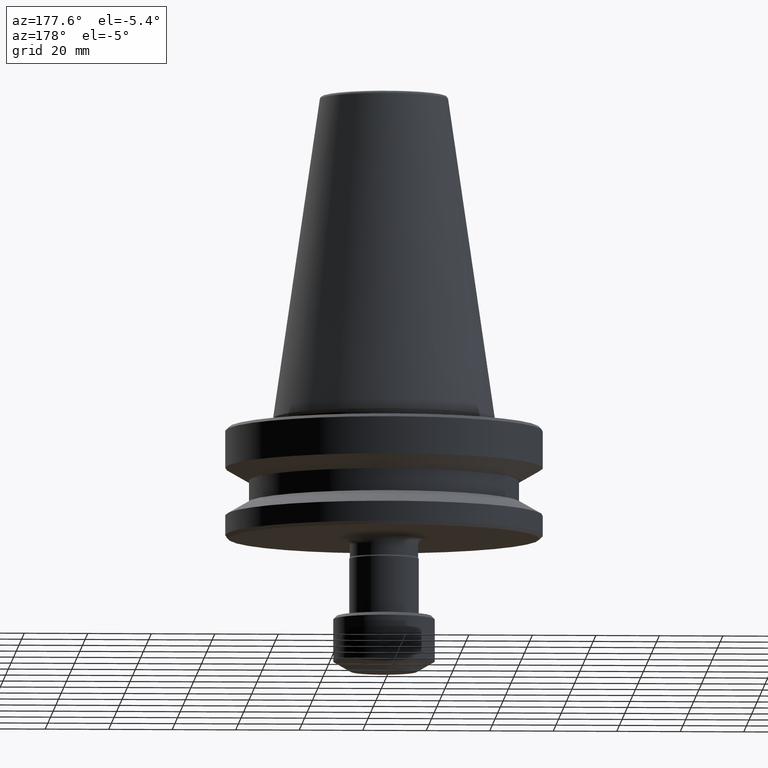
[diagram: clean part render]
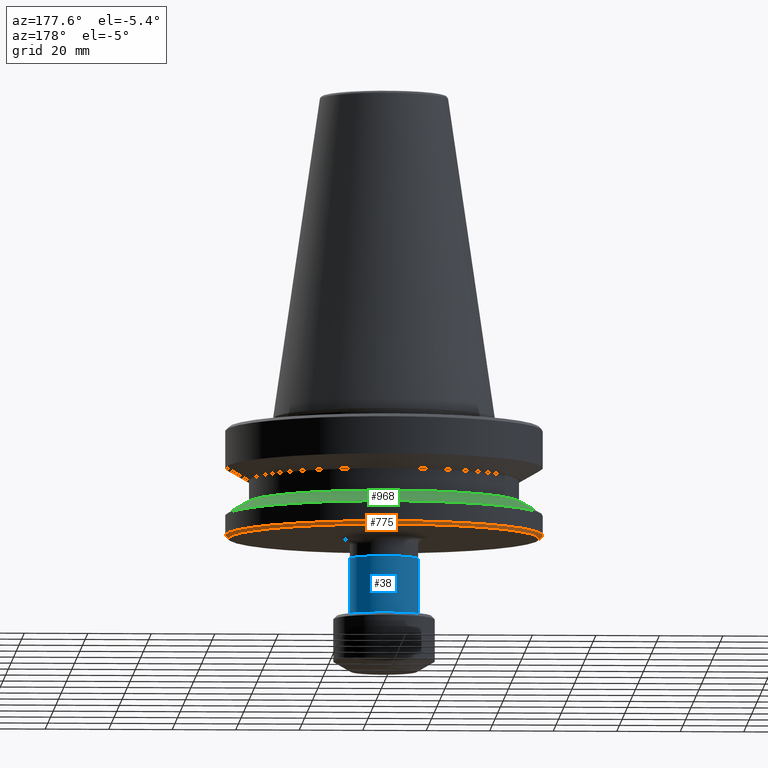
[diagram: same view with three faces highlighted in distinct colors, each labeled with its STEP entity id]
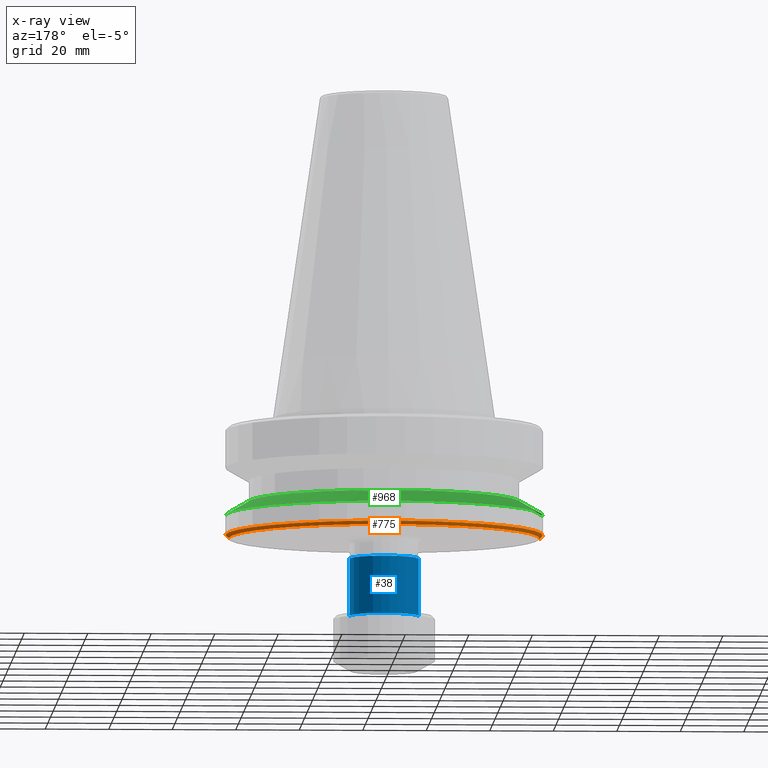
[diagram: x-ray of the same camera — body ghosted, the three highlighted faces saturated]
A machine part, auxiliary view with three faces highlighted in distinct colors.
The next image is the same camera in x-ray (body ghosted, the three faces saturated) — at least one of them is partly hidden behind the body in this view.
Their STEP definitions:

[orange] entity #775 — the highlighted conical surface has half-angle 45 deg.
#14 = LINE ( 'NONE', #77, #1211 ) ;
#77 = CARTESIAN_POINT ( 'NONE',  ( 49.99999999996496300, 0.0000000000000000000, -37.00000000002158600 ) ) ;
#96 = CARTESIAN_POINT ( 'NONE',  ( 0.0000000000000000000, 0.0000000000000000000, -37.00000000002158600 ) ) ;
#100 = VERTEX_POINT ( 'NONE', #232 ) ;
#116 = CIRCLE ( 'NONE', #397, 48.99999999996496300 ) ;
#131 = DIRECTION ( 'NONE',  ( -0.0000000000000000000, -0.0000000000000000000, 1.000000000000000000 ) ) ;
#138 = DIRECTION ( 'NONE',  ( -0.7071067811865474600, 8.659560562354931600E-017, 0.7071067811865475700 ) ) ;
#154 = CARTESIAN_POINT ( 'NONE',  ( -49.99999999996496300, 6.123233995732475500E-015, -37.00000000002158600 ) ) ;
#232 = CARTESIAN_POINT ( 'NONE',  ( -48.99999999996496300, 6.062001655775107900E-015, -38.00000000002158600 ) ) ;
#302 = AXIS2_PLACEMENT_3D ( 'NONE', #96, #131, #651 ) ;
#304 = DIRECTION ( 'NONE',  ( -0.0000000000000000000, -0.0000000000000000000, 1.000000000000000000 ) ) ;
#327 = FACE_OUTER_BOUND ( 'NONE', #384, .T. ) ;
#384 = EDGE_LOOP ( 'NONE', ( #1193, #462, #566, #522 ) ) ;
#397 = AXIS2_PLACEMENT_3D ( 'NONE', #542, #754, #946 ) ;
#413 = CARTESIAN_POINT ( 'NONE',  ( 48.99999999996496300, 0.0000000000000000000, -38.00000000002158600 ) ) ;
#462 = ORIENTED_EDGE ( 'NONE', *, *, #841, .T. ) ;
#491 = CONICAL_SURFACE ( 'NONE', #302, 49.99999999996496300, 0.7853981633974482800 ) ;
#522 = ORIENTED_EDGE ( 'NONE', *, *, #1188, .F. ) ;
#542 = CARTESIAN_POINT ( 'NONE',  ( 0.0000000000000000000, 0.0000000000000000000, -38.00000000002158600 ) ) ;
#554 = VERTEX_POINT ( 'NONE', #413 ) ;
#566 = ORIENTED_EDGE ( 'NONE', *, *, #1210, .F. ) ;
#567 = VERTEX_POINT ( 'NONE', #1100 ) ;
#630 = DIRECTION ( 'NONE',  ( 0.7071067811865474600, 0.0000000000000000000, 0.7071067811865475700 ) ) ;
#651 = DIRECTION ( 'NONE',  ( 1.000000000000000000, 0.0000000000000000000, 0.0000000000000000000 ) ) ;
#684 = VERTEX_POINT ( 'NONE', #1176 ) ;
#744 = DIRECTION ( 'NONE',  ( 1.000000000000000000, 0.0000000000000000000, 0.0000000000000000000 ) ) ;
#754 = DIRECTION ( 'NONE',  ( -0.0000000000000000000, -0.0000000000000000000, 1.000000000000000000 ) ) ;
#775 = ADVANCED_FACE ( 'NONE', ( #327 ), #491, .T. ) ;
#841 = EDGE_CURVE ( 'NONE', #100, #684, #955, .T. ) ;
#917 = EDGE_CURVE ( 'NONE', #554, #100, #116, .T. ) ;
#946 = DIRECTION ( 'NONE',  ( 1.000000000000000000, 0.0000000000000000000, 0.0000000000000000000 ) ) ;
#947 = VECTOR ( 'NONE', #138, 1000.000000000000000 ) ;
#955 = LINE ( 'NONE', #154, #947 ) ;
#1021 = CARTESIAN_POINT ( 'NONE',  ( 0.0000000000000000000, 0.0000000000000000000, -37.00000000002158600 ) ) ;
#1099 = AXIS2_PLACEMENT_3D ( 'NONE', #1021, #304, #744 ) ;
#1100 = CARTESIAN_POINT ( 'NONE',  ( 49.99999999996496300, 0.0000000000000000000, -37.00000000002158600 ) ) ;
#1122 = CIRCLE ( 'NONE', #1099, 49.99999999996496300 ) ;
#1176 = CARTESIAN_POINT ( 'NONE',  ( -49.99999999996496300, 6.123233995732475500E-015, -37.00000000002158600 ) ) ;
#1188 = EDGE_CURVE ( 'NONE', #554, #567, #14, .T. ) ;
#1193 = ORIENTED_EDGE ( 'NONE', *, *, #917, .T. ) ;
#1210 = EDGE_CURVE ( 'NONE', #567, #684, #1122, .T. ) ;
#1211 = VECTOR ( 'NONE', #630, 1000.000000000000000 ) ;

[blue] entity #38 — the highlighted cylindrical surface (edge-blend (fillet) strip) has radius 10.95 mm, axis along (-0, -0, 1).
#8 = VERTEX_POINT ( 'NONE', #238 ) ;
#38 = ADVANCED_FACE ( 'NONE', ( #435 ), #874, .T. ) ;
#54 = CARTESIAN_POINT ( 'NONE',  ( 0.0000000000000000000, 0.0000000000000000000, -44.40000000002088100 ) ) ;
#70 = CARTESIAN_POINT ( 'NONE',  ( 10.94999999996748500, 0.0000000000000000000, -44.40000000002088100 ) ) ;
#83 = DIRECTION ( 'NONE',  ( -0.0000000000000000000, -0.0000000000000000000, 1.000000000000000000 ) ) ;
#140 = EDGE_CURVE ( 'NONE', #622, #755, #1164, .T. ) ;
#148 = AXIS2_PLACEMENT_3D ( 'NONE', #1009, #83, #508 ) ;
#149 = EDGE_LOOP ( 'NONE', ( #241, #1110, #326, #1126 ) ) ;
#171 = CARTESIAN_POINT ( 'NONE',  ( 0.0000000000000000000, 0.0000000000000000000, -62.49924984457199200 ) ) ;
#188 = VERTEX_POINT ( 'NONE', #70 ) ;
#230 = CARTESIAN_POINT ( 'NONE',  ( -10.94999999996748500, 1.340988245062370000E-015, -62.49924984457199200 ) ) ;
#238 = CARTESIAN_POINT ( 'NONE',  ( 10.94999999996748500, 0.0000000000000000000, -62.49924984457199200 ) ) ;
#241 = ORIENTED_EDGE ( 'NONE', *, *, #838, .T. ) ;
#292 = CIRCLE ( 'NONE', #400, 10.94999999996748500 ) ;
#326 = ORIENTED_EDGE ( 'NONE', *, *, #763, .F. ) ;
#390 = CIRCLE ( 'NONE', #1041, 10.94999999996748500 ) ;
#400 = AXIS2_PLACEMENT_3D ( 'NONE', #54, #855, #1051 ) ;
#435 = FACE_OUTER_BOUND ( 'NONE', #149, .T. ) ;
#438 = VECTOR ( 'NONE', #675, 1000.000000000000000 ) ;
#459 = DIRECTION ( 'NONE',  ( -0.0000000000000000000, -0.0000000000000000000, 1.000000000000000000 ) ) ;
#508 = DIRECTION ( 'NONE',  ( 1.000000000000000000, 0.0000000000000000000, 0.0000000000000000000 ) ) ;
#562 = CARTESIAN_POINT ( 'NONE',  ( -10.94999999996748500, 1.340988245062370000E-015, -44.40000000002088100 ) ) ;
#622 = VERTEX_POINT ( 'NONE', #230 ) ;
#675 = DIRECTION ( 'NONE',  ( -0.0000000000000000000, -0.0000000000000000000, 1.000000000000000000 ) ) ;
#755 = VERTEX_POINT ( 'NONE', #562 ) ;
#763 = EDGE_CURVE ( 'NONE', #188, #755, #292, .T. ) ;
#838 = EDGE_CURVE ( 'NONE', #8, #622, #390, .T. ) ;
#855 = DIRECTION ( 'NONE',  ( -0.0000000000000000000, -0.0000000000000000000, 1.000000000000000000 ) ) ;
#874 = CYLINDRICAL_SURFACE ( 'NONE', #148, 10.94999999996748500 ) ;
#930 = DIRECTION ( 'NONE',  ( -1.000000000000000000, 0.0000000000000000000, 0.0000000000000000000 ) ) ;
#967 = LINE ( 'NONE', #1010, #984 ) ;
#984 = VECTOR ( 'NONE', #1231, 1000.000000000000000 ) ;
#1009 = CARTESIAN_POINT ( 'NONE',  ( 0.0000000000000000000, 0.0000000000000000000, 117.7979649317793300 ) ) ;
#1010 = CARTESIAN_POINT ( 'NONE',  ( 10.94999999996748500, 0.0000000000000000000, 117.7979649317793300 ) ) ;
#1039 = EDGE_CURVE ( 'NONE', #8, #188, #967, .T. ) ;
#1041 = AXIS2_PLACEMENT_3D ( 'NONE', #171, #459, #930 ) ;
#1051 = DIRECTION ( 'NONE',  ( 1.000000000000000000, 0.0000000000000000000, 0.0000000000000000000 ) ) ;
#1110 = ORIENTED_EDGE ( 'NONE', *, *, #140, .T. ) ;
#1126 = ORIENTED_EDGE ( 'NONE', *, *, #1039, .F. ) ;
#1164 = LINE ( 'NONE', #1170, #438 ) ;
#1170 = CARTESIAN_POINT ( 'NONE',  ( -10.94999999996748500, 1.340988245062370000E-015, 117.7979649317793300 ) ) ;
#1231 = DIRECTION ( 'NONE',  ( -0.0000000000000000000, -0.0000000000000000000, 1.000000000000000000 ) ) ;

[green] entity #968 — the highlighted conical surface has half-angle 60 deg.
#69 = CARTESIAN_POINT ( 'NONE',  ( 49.99999999996497000, 6.123233995732476300E-015, -30.69977999679464300 ) ) ;
#93 = AXIS2_PLACEMENT_3D ( 'NONE', #544, #1027, #436 ) ;
#121 = CARTESIAN_POINT ( 'NONE',  ( 0.0000000000000000000, 0.0000000000000000000, -30.69977999679464300 ) ) ;
#192 = FACE_OUTER_BOUND ( 'NONE', #1102, .T. ) ;
#268 = CONICAL_SURFACE ( 'NONE', #1177, 49.99999999996497000, 1.047197551196596500 ) ;
#277 = AXIS2_PLACEMENT_3D ( 'NONE', #121, #399, #439 ) ;
#323 = CARTESIAN_POINT ( 'NONE',  ( -43.07217782645444300, 0.0000000000000000000, -26.70000000002047000 ) ) ;
#329 = LINE ( 'NONE', #69, #341 ) ;
#341 = VECTOR ( 'NONE', #1145, 1000.000000000000100 ) ;
#357 = CARTESIAN_POINT ( 'NONE',  ( 49.99999999996497000, 0.0000000000000000000, -30.69977999679464300 ) ) ;
#364 = ORIENTED_EDGE ( 'NONE', *, *, #449, .T. ) ;
#398 = EDGE_CURVE ( 'NONE', #488, #625, #553, .T. ) ;
#399 = DIRECTION ( 'NONE',  ( -0.0000000000000000000, -0.0000000000000000000, 1.000000000000000000 ) ) ;
#407 = DIRECTION ( 'NONE',  ( 0.0000000000000000000, 0.0000000000000000000, -1.000000000000000000 ) ) ;
#436 = DIRECTION ( 'NONE',  ( 1.000000000000000000, 0.0000000000000000000, 0.0000000000000000000 ) ) ;
#439 = DIRECTION ( 'NONE',  ( 1.000000000000000000, 0.0000000000000000000, 0.0000000000000000000 ) ) ;
#449 = EDGE_CURVE ( 'NONE', #862, #625, #626, .T. ) ;
#483 = CARTESIAN_POINT ( 'NONE',  ( -49.99999999996497000, 0.0000000000000000000, -30.69977999679464300 ) ) ;
#488 = VERTEX_POINT ( 'NONE', #323 ) ;
#506 = CARTESIAN_POINT ( 'NONE',  ( -49.99999999996497700, 6.123233995732477000E-015, -30.69977999679464300 ) ) ;
#537 = DIRECTION ( 'NONE',  ( -0.8660254037844379300, 0.0000000000000000000, -0.5000000000000011100 ) ) ;
#544 = CARTESIAN_POINT ( 'NONE',  ( 0.0000000000000000000, 0.0000000000000000000, -26.70000000002047000 ) ) ;
#553 = LINE ( 'NONE', #483, #1169 ) ;
#586 = CARTESIAN_POINT ( 'NONE',  ( 0.0000000000000000000, 0.0000000000000000000, -30.69977999679464300 ) ) ;
#625 = VERTEX_POINT ( 'NONE', #506 ) ;
#626 = CIRCLE ( 'NONE', #277, 49.99999999996497000 ) ;
#628 = CIRCLE ( 'NONE', #93, 43.07217782645444300 ) ;
#704 = ORIENTED_EDGE ( 'NONE', *, *, #398, .F. ) ;
#814 = EDGE_CURVE ( 'NONE', #1218, #488, #628, .T. ) ;
#825 = DIRECTION ( 'NONE',  ( -1.000000000000000000, 0.0000000000000000000, 0.0000000000000000000 ) ) ;
#862 = VERTEX_POINT ( 'NONE', #357 ) ;
#942 = ORIENTED_EDGE ( 'NONE', *, *, #1005, .T. ) ;
#968 = ADVANCED_FACE ( 'NONE', ( #192 ), #268, .T. ) ;
#1005 = EDGE_CURVE ( 'NONE', #1218, #862, #329, .T. ) ;
#1027 = DIRECTION ( 'NONE',  ( -0.0000000000000000000, -0.0000000000000000000, 1.000000000000000000 ) ) ;
#1102 = EDGE_LOOP ( 'NONE', ( #1181, #942, #364, #704 ) ) ;
#1145 = DIRECTION ( 'NONE',  ( 0.8660254037844379300, 1.060575238724906100E-016, -0.5000000000000011100 ) ) ;
#1169 = VECTOR ( 'NONE', #537, 1000.000000000000100 ) ;
#1177 = AXIS2_PLACEMENT_3D ( 'NONE', #586, #407, #825 ) ;
#1181 = ORIENTED_EDGE ( 'NONE', *, *, #814, .F. ) ;
#1186 = CARTESIAN_POINT ( 'NONE',  ( 43.07217782645444300, 5.699027233239889900E-015, -26.70000000002047000 ) ) ;
#1218 = VERTEX_POINT ( 'NONE', #1186 ) ;